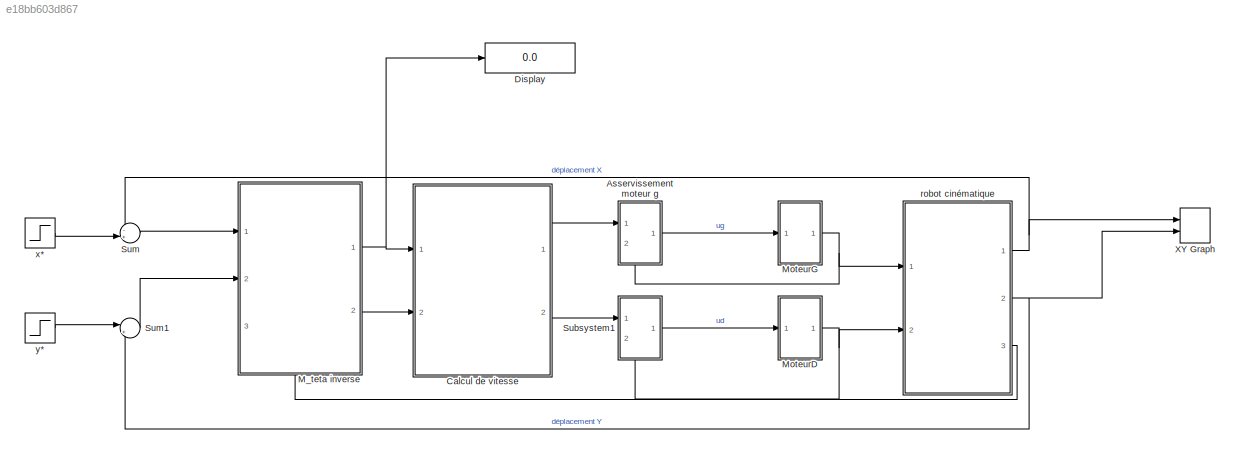
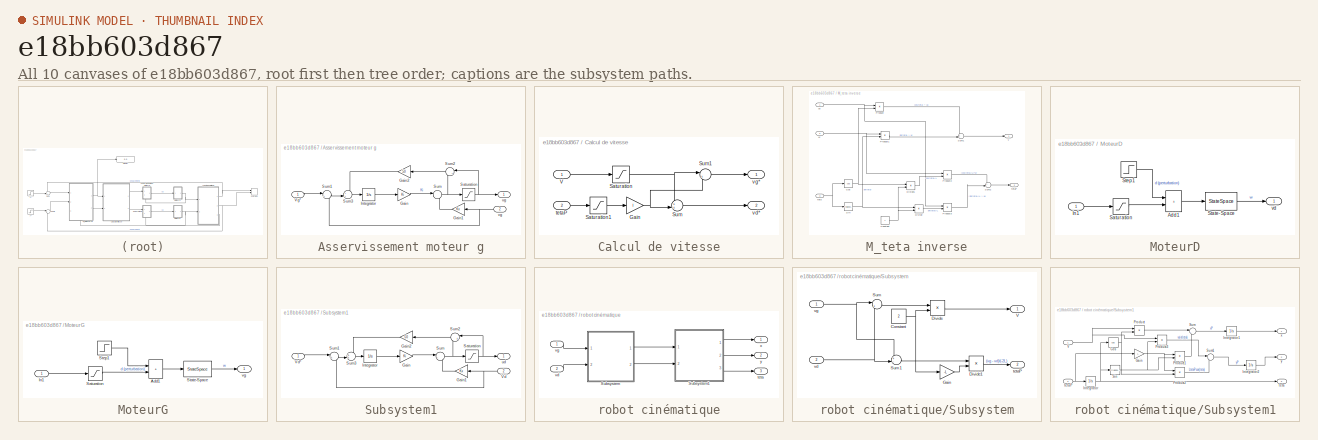
[diagram: thumbnail index - all 10 canvases of the model, root first then tree order]
MODEL slx_e18bb603d867
KIND model
CONFIG AbsTol = auto
CONFIG EnableMultiTasking = off
CONFIG FixedStep = auto
CONFIG MaxStep = auto
CONFIG MinStep = auto
CONFIG RelTol = 1e-3
CONFIG SampleTimeConstraint = Unconstrained
CONFIG SolverName = VariableStepAuto
CONFIG StartTime = 0.0
CONFIG StopTime = 10.0
BLOCK [SubSystem] Asservissement moteur g
  PortSchema = {"entries":[{"content":{"sides":[{"content":{"connectorIds":["In1"]},"type":"ConnectorPlacement.EquallySpacedRectSide","uuid":"974f67ff-ec86-461c-aa60-533cdeafb118"},{"content":{"connectorIds":["Out1"],"side":"RIGHT"},"type":"ConnectorPlacement.EquallySpacedRectSide","uuid":"c8387546-9b25-43fb-a7e6-791e04dec918"},{"content":{"connectorIds":[],"side":"TOP"},"type":"ConnectorPlacement.EquallySpacedR...<+533ch>
  Ports = [2, 1]
  RequestExecContextInheritance = off
BLOCK [Gain] Asservissement moteur g/Gain
  Gain = Ki
BLOCK [Gain] Asservissement moteur g/Gain1
  Gain = Kx
BLOCK [Gain] Asservissement moteur g/Gain2
  Gain = 50
BLOCK [Integrator] Asservissement moteur g/Integrator
  Ports = [1, 1]
BLOCK [Saturate] Asservissement moteur g/Saturation
  LowerLimit = -9
  UpperLimit = 9
BLOCK [Sum] Asservissement moteur g/Sum
  Inputs = |--
  Ports = [2, 1]
BLOCK [Sum] Asservissement moteur g/Sum1
  Inputs = |+-
  Ports = [2, 1]
BLOCK [Sum] Asservissement moteur g/Sum2
  Inputs = |+-
  Ports = [2, 1]
BLOCK [Sum] Asservissement moteur g/Sum3
  Inputs = ++|
  Ports = [2, 1]
BLOCK [Inport] Asservissement moteur g/Vg*
BLOCK [Outport] Asservissement moteur g/ug
BLOCK [Inport] Asservissement moteur g/vg
  Port = 2
BLOCK [SubSystem] Calcul de vitesse
  Ports = [2, 2]
  RequestExecContextInheritance = off
BLOCK [Gain] Calcul de vitesse/Gain
  Gain = l
BLOCK [Saturate] Calcul de vitesse/Saturation
  LowerLimit = -300
  UpperLimit = 300
BLOCK [Saturate] Calcul de vitesse/Saturation1
  LowerLimit = -300/l
  UpperLimit = 300/l
BLOCK [Sum] Calcul de vitesse/Sum
  Inputs = ++|
  Ports = [2, 1]
BLOCK [Sum] Calcul de vitesse/Sum1
  Inputs = |+-
  Ports = [2, 1]
BLOCK [Inport] Calcul de vitesse/V
BLOCK [Inport] Calcul de vitesse/tetaP
  Port = 2
BLOCK [Outport] Calcul de vitesse/vd*
  Port = 2
BLOCK [Outport] Calcul de vitesse/vg*
BLOCK [Display] Display
  Decimation = 1
  Ports = [1]
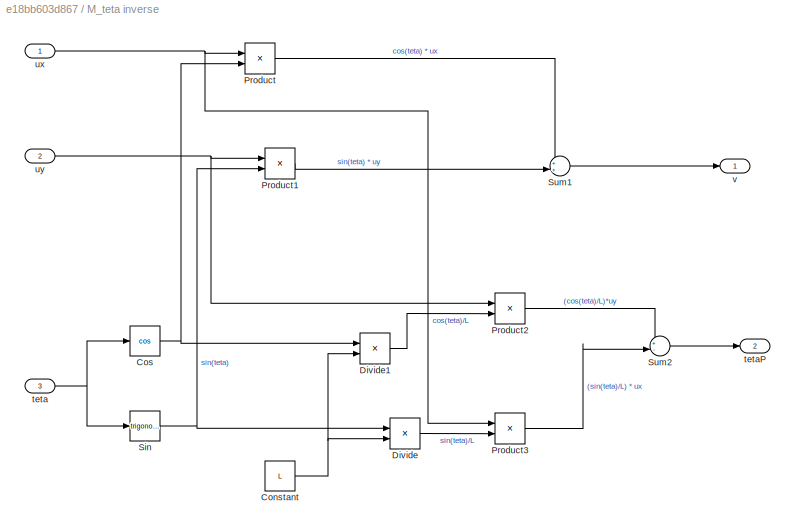
BLOCK [SubSystem] M_teta inverse
  PortSchema = {"entries":[{"content":{"sides":[{"content":{"connectorIds":["In1","In2"]},"type":"ConnectorPlacement.EquallySpacedRectSide","uuid":"46188908-b1cc-4882-9b8e-a8476c333113"},{"content":{"connectorIds":["Out1","Out2"],"side":"RIGHT"},"type":"ConnectorPlacement.EquallySpacedRectSide","uuid":"d9e3f140-d678-4bcd-b58f-e0cf2d32dddf"},{"content":{"connectorIds":[],"side":"TOP"},"type":"ConnectorPlacement.E...<+546ch>
  Ports = [3, 2]
  RequestExecContextInheritance = off
BLOCK [Constant] M_teta inverse/Constant
  Value = L
BLOCK [Trigonometry] M_teta inverse/Cos
  Operator = cos
  Ports = [1, 1]
BLOCK [Product] M_teta inverse/Divide
  Inputs = */
  Ports = [2, 1]
BLOCK [Product] M_teta inverse/Divide1
  Inputs = */
  Ports = [2, 1]
BLOCK [Product] M_teta inverse/Product
  Ports = [2, 1]
BLOCK [Product] M_teta inverse/Product1
  Ports = [2, 1]
BLOCK [Product] M_teta inverse/Product2
  Ports = [2, 1]
BLOCK [Product] M_teta inverse/Product3
  Ports = [2, 1]
BLOCK [Trigonometry] M_teta inverse/Sin
  Ports = [1, 1]
BLOCK [Sum] M_teta inverse/Sum1
  Inputs = ++|
  Ports = [2, 1]
BLOCK [Sum] M_teta inverse/Sum2
  Inputs = +-|
  Ports = [2, 1]
BLOCK [Inport] M_teta inverse/teta
  Port = 3
BLOCK [Outport] M_teta inverse/tetaP
  Port = 2
BLOCK [Inport] M_teta inverse/ux
BLOCK [Inport] M_teta inverse/uy
  Port = 2
BLOCK [Outport] M_teta inverse/v
BLOCK [SubSystem] MoteurD
  Ports = [1, 1]
  RequestExecContextInheritance = off
BLOCK [Sum] MoteurD/Add1
  IconShape = rectangular
  Ports = [2, 1]
BLOCK [Inport] MoteurD/In1
BLOCK [Saturate] MoteurD/Saturation
  LowerLimit = -9
  UpperLimit = 9
BLOCK [StateSpace] MoteurD/State-Space
  A = A
  B = B
  C = C
  D = D
  InitialCondition = 0
  Ports = [1, 1]
BLOCK [Step] MoteurD/Step1
  After = 0
  SampleTime = 0
  Time = 5
BLOCK [Outport] MoteurD/vd
BLOCK [SubSystem] MoteurG
  Ports = [1, 1]
  RequestExecContextInheritance = off
BLOCK [Sum] MoteurG/Add1
  IconShape = rectangular
  Ports = [2, 1]
BLOCK [Inport] MoteurG/In1
BLOCK [Saturate] MoteurG/Saturation
  LowerLimit = -9
  UpperLimit = 9
BLOCK [StateSpace] MoteurG/State-Space
  A = A
  B = B
  C = C
  D = D
  InitialCondition = 0
  Ports = [1, 1]
BLOCK [Step] MoteurG/Step1
  After = 0
  SampleTime = 0
  Time = 5
BLOCK [Outport] MoteurG/vg
BLOCK [SubSystem] Subsystem1
  PortSchema = {"entries":[{"content":{"sides":[{"content":{"connectorIds":["In1"]},"type":"ConnectorPlacement.EquallySpacedRectSide","uuid":"974f67ff-ec86-461c-aa60-533cdeafb118"},{"content":{"connectorIds":["Out1"],"side":"RIGHT"},"type":"ConnectorPlacement.EquallySpacedRectSide","uuid":"c8387546-9b25-43fb-a7e6-791e04dec918"},{"content":{"connectorIds":[],"side":"TOP"},"type":"ConnectorPlacement.EquallySpacedR...<+533ch>
  Ports = [2, 1]
  RequestExecContextInheritance = off
BLOCK [Gain] Subsystem1/Gain
  Gain = Ki
BLOCK [Gain] Subsystem1/Gain1
  Gain = Kx
BLOCK [Gain] Subsystem1/Gain2
  Gain = 50
BLOCK [Integrator] Subsystem1/Integrator
  Ports = [1, 1]
BLOCK [Saturate] Subsystem1/Saturation
  LowerLimit = -9
  UpperLimit = 9
BLOCK [Sum] Subsystem1/Sum
  Inputs = |--
  Ports = [2, 1]
BLOCK [Sum] Subsystem1/Sum1
  Inputs = |+-
  Ports = [2, 1]
BLOCK [Sum] Subsystem1/Sum2
  Inputs = |+-
  Ports = [2, 1]
BLOCK [Sum] Subsystem1/Sum3
  Inputs = ++|
  Ports = [2, 1]
BLOCK [Inport] Subsystem1/Vd
  Port = 2
BLOCK [Inport] Subsystem1/Vd*
BLOCK [Outport] Subsystem1/ud
BLOCK [Sum] Sum
  Inputs = -+|
  Ports = [2, 1]
BLOCK [Sum] Sum1
  Inputs = |+-
  Ports = [2, 1]
BLOCK [Record] XY Graph
  CompatibilityTag = XY
  FileSettingsInternal = {"entries":[{"content":{"excelSettings":{"content":{},"type":"Streamout.ExcelSettings"}},"type":"Streamout.FileSettingStorage","uuid":"d9b7ccbf-8b1c-4774-986d-cf4be9a417a1"}],"packageUris":["http://schema.mathworks.com/mf0/streamout_blocks/R2020a"],"version":"1.0"}
  Layout = [1 1]
  Ports = [2]
  SignalsInternal = {"entries":[{"content":{"signals":[{"content":{"blockPath":["robot/XY Graph"],"channel":[],"dimensions":[1],"domain":"robot/XY Graph","lineColor":"#a2142f","plots":[1],"port":1,"sid":[],"signalID":17,"signalName":"XY Graph:1"},"type":"RecordBlkView.Signal","uuid":"e619f21a-7836-4c61-a051-832b143e0227"},{"content":{"blockPath":["robot/XY Graph"],"channel":[],"dimensions":[1],"domain":"robot/XY Grap...<+349ch>
  VisualizationBindings = {"xyplotplugin":{"info":[{"series":[{"bindingParametersList":[{"parameter":"X-Axis","signalID":17,"signalName":"XY Graph:1"},{"parameter":"Y-Axis","signalID":20,"signalName":"XY Graph:2"}],"seriesID":55674}],"subplotID":1}]}}
  st = -1
BLOCK [SubSystem] robot cinématique
  Ports = [2, 3]
  RequestExecContextInheritance = off
BLOCK [SubSystem] robot cinématique/Subsystem
  Ports = [2, 2]
  RequestExecContextInheritance = off
BLOCK [Constant] robot cinématique/Subsystem/Constant
  Value = 2
BLOCK [Product] robot cinématique/Subsystem/Divide
  Inputs = */
  Ports = [2, 1]
BLOCK [Product] robot cinématique/Subsystem/Divide1
  Inputs = */
  Ports = [2, 1]
BLOCK [Gain] robot cinématique/Subsystem/Gain
  Gain = -L
BLOCK [Sum] robot cinématique/Subsystem/Sum
  Inputs = |++
  Ports = [2, 1]
BLOCK [Sum] robot cinématique/Subsystem/Sum1
  Inputs = +-|
  Ports = [2, 1]
BLOCK [Outport] robot cinématique/Subsystem/V
BLOCK [Outport] robot cinématique/Subsystem/tetaP
  Port = 2
BLOCK [Inport] robot cinématique/Subsystem/vd
  Port = 2
BLOCK [Inport] robot cinématique/Subsystem/vg
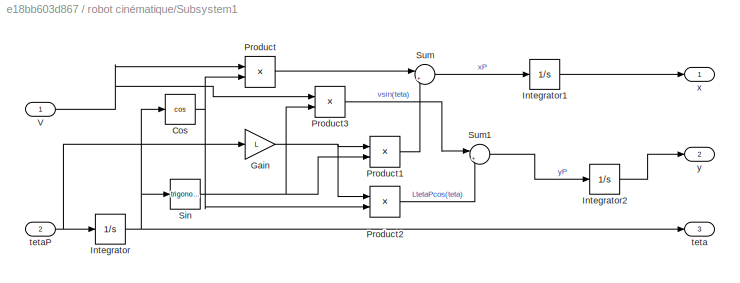
BLOCK [SubSystem] robot cinématique/Subsystem1
  Ports = [2, 3]
  RequestExecContextInheritance = off
BLOCK [Trigonometry] robot cinématique/Subsystem1/Cos
  Operator = cos
  Ports = [1, 1]
BLOCK [Gain] robot cinématique/Subsystem1/Gain
  Gain = L
BLOCK [Integrator] robot cinématique/Subsystem1/Integrator
  Ports = [1, 1]
BLOCK [Integrator] robot cinématique/Subsystem1/Integrator1
  Ports = [1, 1]
BLOCK [Integrator] robot cinématique/Subsystem1/Integrator2
  Ports = [1, 1]
BLOCK [Product] robot cinématique/Subsystem1/Product
  Ports = [2, 1]
BLOCK [Product] robot cinématique/Subsystem1/Product1
  Ports = [2, 1]
BLOCK [Product] robot cinématique/Subsystem1/Product2
  Ports = [2, 1]
BLOCK [Product] robot cinématique/Subsystem1/Product3
  Ports = [2, 1]
BLOCK [Trigonometry] robot cinématique/Subsystem1/Sin
  Ports = [1, 1]
BLOCK [Sum] robot cinématique/Subsystem1/Sum
  Inputs = |+-
  Ports = [2, 1]
BLOCK [Sum] robot cinématique/Subsystem1/Sum1
  Inputs = |+-
  Ports = [2, 1]
BLOCK [Inport] robot cinématique/Subsystem1/V
BLOCK [Outport] robot cinématique/Subsystem1/teta
  Port = 3
BLOCK [Inport] robot cinématique/Subsystem1/tetaP
  Port = 2
BLOCK [Outport] robot cinématique/Subsystem1/x
BLOCK [Outport] robot cinématique/Subsystem1/y
  Port = 2
BLOCK [Outport] robot cinématique/teta
  Port = 3
BLOCK [Inport] robot cinématique/vd
  Port = 2
BLOCK [Inport] robot cinématique/vg
BLOCK [Outport] robot cinématique/x
BLOCK [Outport] robot cinématique/y
  Port = 2
BLOCK [Step] x*
  After = 1000
  SampleTime = 0
BLOCK [Step] y*
  After = 500
  SampleTime = 0
LINE Asservissement moteur g/Gain1:1 -> Asservissement moteur g/Sum:2
LINE Asservissement moteur g/Gain2:1 -> Asservissement moteur g/Sum3:1
LINE Asservissement moteur g/Gain:1 -> Asservissement moteur g/Sum:1
LINE Asservissement moteur g/Integrator:1 -> Asservissement moteur g/Gain:1
NET Asservissement moteur g/Saturation:1 -> Asservissement moteur g/Sum2:1, Asservissement moteur g/ug:1
LINE Asservissement moteur g/Sum1:1 -> Asservissement moteur g/Sum3:2
LINE Asservissement moteur g/Sum2:1 -> Asservissement moteur g/Gain2:1
LINE Asservissement moteur g/Sum3:1 -> Asservissement moteur g/Integrator:1
NET Asservissement moteur g/Sum:1 -> Asservissement moteur g/Saturation:1, Asservissement moteur g/Sum2:2
LINE Asservissement moteur g/Vg*:1 -> Asservissement moteur g/Sum1:1
NET Asservissement moteur g/vg:1 -> Asservissement moteur g/Gain1:1, Asservissement moteur g/Sum1:2
LINE Asservissement moteur g:1 -> MoteurG:1
NET Calcul de vitesse/Gain:1 -> Calcul de vitesse/Sum1:2, Calcul de vitesse/Sum:2
LINE Calcul de vitesse/Saturation1:1 -> Calcul de vitesse/Gain:1
NET Calcul de vitesse/Saturation:1 -> Calcul de vitesse/Sum1:1, Calcul de vitesse/Sum:1
LINE Calcul de vitesse/Sum1:1 -> Calcul de vitesse/vg*:1
LINE Calcul de vitesse/Sum:1 -> Calcul de vitesse/vd*:1
LINE Calcul de vitesse/V:1 -> Calcul de vitesse/Saturation:1
LINE Calcul de vitesse/tetaP:1 -> Calcul de vitesse/Saturation1:1
LINE Calcul de vitesse:1 -> Asservissement moteur g:1
LINE Calcul de vitesse:2 -> Subsystem1:1
NET M_teta inverse/Constant:1 -> M_teta inverse/Divide1:2, M_teta inverse/Divide:2
NET M_teta inverse/Cos:1 -> M_teta inverse/Divide1:1, M_teta inverse/Product:2
LINE M_teta inverse/Divide1:1 -> M_teta inverse/Product2:2
LINE M_teta inverse/Divide:1 -> M_teta inverse/Product3:2
LINE M_teta inverse/Product1:1 -> M_teta inverse/Sum1:2
LINE M_teta inverse/Product2:1 -> M_teta inverse/Sum2:1
LINE M_teta inverse/Product3:1 -> M_teta inverse/Sum2:2
LINE M_teta inverse/Product:1 -> M_teta inverse/Sum1:1
NET M_teta inverse/Sin:1 -> M_teta inverse/Divide:1, M_teta inverse/Product1:2
LINE M_teta inverse/Sum1:1 -> M_teta inverse/v:1
LINE M_teta inverse/Sum2:1 -> M_teta inverse/tetaP:1
NET M_teta inverse/teta:1 -> M_teta inverse/Cos:1, M_teta inverse/Sin:1
NET M_teta inverse/ux:1 -> M_teta inverse/Product3:1, M_teta inverse/Product:1
NET M_teta inverse/uy:1 -> M_teta inverse/Product1:1, M_teta inverse/Product2:1
NET M_teta inverse:1 -> Calcul de vitesse:1, Display:1
LINE M_teta inverse:2 -> Calcul de vitesse:2
LINE MoteurD/Add1:1 -> MoteurD/State-Space:1
LINE MoteurD/In1:1 -> MoteurD/Saturation:1
LINE MoteurD/Saturation:1 -> MoteurD/Add1:2
LINE MoteurD/State-Space:1 -> MoteurD/vd:1
LINE MoteurD/Step1:1 -> MoteurD/Add1:1
NET MoteurD:1 -> Subsystem1:2, robot cinématique:2
LINE MoteurG/Add1:1 -> MoteurG/State-Space:1
LINE MoteurG/In1:1 -> MoteurG/Saturation:1
LINE MoteurG/Saturation:1 -> MoteurG/Add1:2
LINE MoteurG/State-Space:1 -> MoteurG/vg:1
LINE MoteurG/Step1:1 -> MoteurG/Add1:1
NET MoteurG:1 -> Asservissement moteur g:2, robot cinématique:1
LINE Subsystem1/Gain1:1 -> Subsystem1/Sum:2
LINE Subsystem1/Gain2:1 -> Subsystem1/Sum3:1
LINE Subsystem1/Gain:1 -> Subsystem1/Sum:1
LINE Subsystem1/Integrator:1 -> Subsystem1/Gain:1
NET Subsystem1/Saturation:1 -> Subsystem1/Sum2:1, Subsystem1/ud:1
LINE Subsystem1/Sum1:1 -> Subsystem1/Sum3:2
LINE Subsystem1/Sum2:1 -> Subsystem1/Gain2:1
LINE Subsystem1/Sum3:1 -> Subsystem1/Integrator:1
NET Subsystem1/Sum:1 -> Subsystem1/Saturation:1, Subsystem1/Sum2:2
LINE Subsystem1/Vd*:1 -> Subsystem1/Sum1:1
NET Subsystem1/Vd:1 -> Subsystem1/Gain1:1, Subsystem1/Sum1:2
LINE Subsystem1:1 -> MoteurD:1
LINE Sum1:1 -> M_teta inverse:2
LINE Sum:1 -> M_teta inverse:1
NET robot cinématique/Subsystem/Constant:1 -> robot cinématique/Subsystem/Divide:2, robot cinématique/Subsystem/Gain:1
LINE robot cinématique/Subsystem/Divide1:1 -> robot cinématique/Subsystem/tetaP:1
LINE robot cinématique/Subsystem/Divide:1 -> robot cinématique/Subsystem/V:1
LINE robot cinématique/Subsystem/Gain:1 -> robot cinématique/Subsystem/Divide1:2
LINE robot cinématique/Subsystem/Sum1:1 -> robot cinématique/Subsystem/Divide1:1
LINE robot cinématique/Subsystem/Sum:1 -> robot cinématique/Subsystem/Divide:1
NET robot cinématique/Subsystem/vd:1 -> robot cinématique/Subsystem/Sum1:2, robot cinématique/Subsystem/Sum:2
NET robot cinématique/Subsystem/vg:1 -> robot cinématique/Subsystem/Sum1:1, robot cinématique/Subsystem/Sum:1
NET robot cinématique/Subsystem1/Cos:1 -> robot cinématique/Subsystem1/Product2:2, robot cinématique/Subsystem1/Product:2
NET robot cinématique/Subsystem1/Gain:1 -> robot cinématique/Subsystem1/Product1:1, robot cinématique/Subsystem1/Product2:1
LINE robot cinématique/Subsystem1/Integrator1:1 -> robot cinématique/Subsystem1/x:1
LINE robot cinématique/Subsystem1/Integrator2:1 -> robot cinématique/Subsystem1/y:1
NET robot cinématique/Subsystem1/Integrator:1 -> robot cinématique/Subsystem1/Cos:1, robot cinématique/Subsystem1/Sin:1, robot cinématique/Subsystem1/teta:1
LINE robot cinématique/Subsystem1/Product1:1 -> robot cinématique/Subsystem1/Sum:2
LINE robot cinématique/Subsystem1/Product2:1 -> robot cinématique/Subsystem1/Sum1:2
LINE robot cinématique/Subsystem1/Product3:1 -> robot cinématique/Subsystem1/Sum1:1
LINE robot cinématique/Subsystem1/Product:1 -> robot cinématique/Subsystem1/Sum:1
NET robot cinématique/Subsystem1/Sin:1 -> robot cinématique/Subsystem1/Product1:2, robot cinématique/Subsystem1/Product3:2
LINE robot cinématique/Subsystem1/Sum1:1 -> robot cinématique/Subsystem1/Integrator2:1
LINE robot cinématique/Subsystem1/Sum:1 -> robot cinématique/Subsystem1/Integrator1:1
NET robot cinématique/Subsystem1/V:1 -> robot cinématique/Subsystem1/Product3:1, robot cinématique/Subsystem1/Product:1
NET robot cinématique/Subsystem1/tetaP:1 -> robot cinématique/Subsystem1/Gain:1, robot cinématique/Subsystem1/Integrator:1
LINE robot cinématique/Subsystem1:1 -> robot cinématique/x:1
LINE robot cinématique/Subsystem1:2 -> robot cinématique/y:1
LINE robot cinématique/Subsystem1:3 -> robot cinématique/teta:1
LINE robot cinématique/Subsystem:1 -> robot cinématique/Subsystem1:1
LINE robot cinématique/Subsystem:2 -> robot cinématique/Subsystem1:2
LINE robot cinématique/vd:1 -> robot cinématique/Subsystem:2
LINE robot cinématique/vg:1 -> robot cinématique/Subsystem:1
NET robot cinématique:1 -> Sum:1, XY Graph:1
NET robot cinématique:2 -> Sum1:2, XY Graph:2
LINE robot cinématique:3 -> M_teta inverse:3
LINE x*:1 -> Sum:2
LINE y*:1 -> Sum1:1
note: NET lines group one-source signal fan-out (src -> all destinations, sorted); 1:1 wires keep LINE
